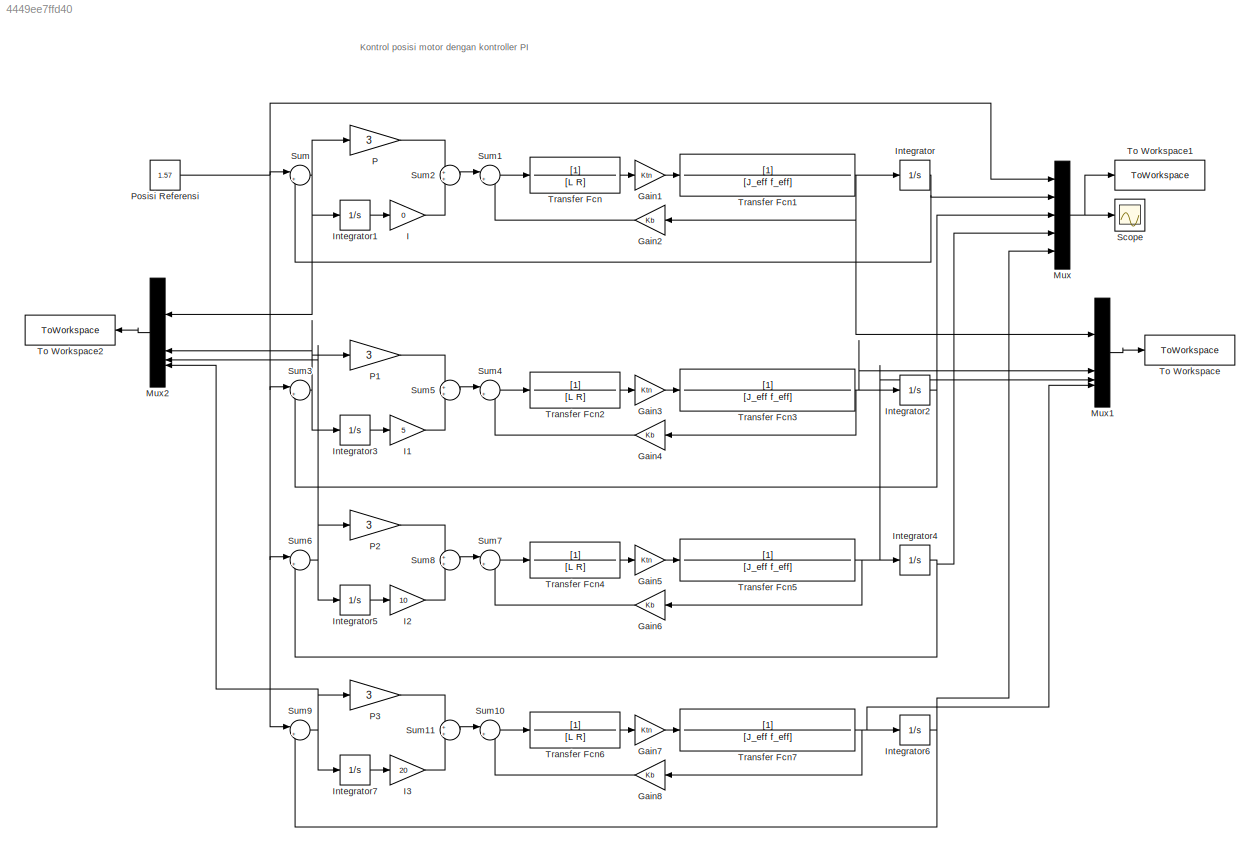
MODEL slx_4449ee7ffd40
KIND model
CONFIG AbsTol = auto
CONFIG EnableMultiTasking = off
CONFIG FixedStep = auto
CONFIG MaxStep = auto
CONFIG MinStep = auto
CONFIG RelTol = 1e-3
CONFIG SampleTimeConstraint = Unconstrained
CONFIG SolverName = VariableStepAuto
CONFIG StartTime = 0.0
CONFIG StopTime = 2.5
BLOCK [Gain] Gain1
  Gain = Ktn
BLOCK [Gain] Gain2
  Gain = Kb
BLOCK [Gain] Gain3
  Gain = Ktn
BLOCK [Gain] Gain4
  Gain = Kb
BLOCK [Gain] Gain5
  Gain = Ktn
BLOCK [Gain] Gain6
  Gain = Kb
BLOCK [Gain] Gain7
  Gain = Ktn
BLOCK [Gain] Gain8
  Gain = Kb
BLOCK [Gain] I
  Gain = 0
BLOCK [Gain] I1
  Gain = 5
BLOCK [Gain] I2
  Gain = 10
BLOCK [Gain] I3
  Gain = 20
BLOCK [Integrator] Integrator
BLOCK [Integrator] Integrator1
BLOCK [Integrator] Integrator2
BLOCK [Integrator] Integrator3
BLOCK [Integrator] Integrator4
BLOCK [Integrator] Integrator5
BLOCK [Integrator] Integrator6
BLOCK [Integrator] Integrator7
BLOCK [Mux] Mux
  DisplayOption = bar
  Inputs = 5
BLOCK [Mux] Mux1
  DisplayOption = bar
BLOCK [Mux] Mux2
  DisplayOption = bar
BLOCK [Gain] P
  Gain = 3
BLOCK [Gain] P1
  Gain = 3
BLOCK [Gain] P2
  Gain = 3
BLOCK [Gain] P3
  Gain = 3
BLOCK [Constant] Posisi Referensi
  Value = 1.57
BLOCK [Scope] Scope
  Floating = off
  NumInputPorts = 1
  ScopeSpecificationString = Simulink.scopes.TimeScopeBlockCfg('CurrentConfiguration', extmgr.ConfigurationSet(extmgr.Configuration('Core','General UI',true),extmgr.Configuration('Core','Source UI',true),extmgr.Configuration('Sources','WiredSimulink',true),extmgr.Configuration('Visuals','Time Domain',true,'SerializedDisplays',{struct('MinYLimReal','-0.36524','MaxYLimReal','3.2872','YLabelReal','','MinYLimMag','0.00000','MaxYL...<+1459ch>
BLOCK [Sum] Sum
  Inputs = |+-
BLOCK [Sum] Sum1
  Inputs = |+-
BLOCK [Sum] Sum10
  Inputs = |+-
BLOCK [Sum] Sum11
BLOCK [Sum] Sum2
BLOCK [Sum] Sum3
  Inputs = |+-
BLOCK [Sum] Sum4
  Inputs = |+-
BLOCK [Sum] Sum5
BLOCK [Sum] Sum6
  Inputs = |+-
BLOCK [Sum] Sum7
  Inputs = |+-
BLOCK [Sum] Sum8
BLOCK [Sum] Sum9
  Inputs = |+-
BLOCK [ToWorkspace] To Workspace
  FixptAsFi = on
  MaxDataPoints = inf
  SampleTime = -1
  SaveFormat = Timeseries
  VariableName = kec_act
BLOCK [ToWorkspace] To Workspace1
  FixptAsFi = on
  MaxDataPoints = inf
  SampleTime = -1
  SaveFormat = Timeseries
  VariableName = pos_act
BLOCK [ToWorkspace] To Workspace2
  FixptAsFi = on
  MaxDataPoints = inf
  SampleTime = -1
  SaveFormat = Timeseries
  VariableName = err
BLOCK [TransferFcn] Transfer Fcn
  Denominator = [L R]
BLOCK [TransferFcn] Transfer Fcn1
  Denominator = [J_eff f_eff]
BLOCK [TransferFcn] Transfer Fcn2
  Denominator = [L R]
BLOCK [TransferFcn] Transfer Fcn3
  Denominator = [J_eff f_eff]
BLOCK [TransferFcn] Transfer Fcn4
  Denominator = [L R]
BLOCK [TransferFcn] Transfer Fcn5
  Denominator = [J_eff f_eff]
BLOCK [TransferFcn] Transfer Fcn6
  Denominator = [L R]
BLOCK [TransferFcn] Transfer Fcn7
  Denominator = [J_eff f_eff]
ANNOTATION (root): Kontrol posisi motor dengan kontroller PI
LINE Gain1:1 -> Transfer Fcn1:1
LINE Gain2:1 -> Sum1:2
LINE Gain3:1 -> Transfer Fcn3:1
LINE Gain4:1 -> Sum4:2
LINE Gain5:1 -> Transfer Fcn5:1
LINE Gain6:1 -> Sum7:2
LINE Gain7:1 -> Transfer Fcn7:1
LINE Gain8:1 -> Sum10:2
LINE I1:1 -> Sum5:2
LINE I2:1 -> Sum8:2
LINE I3:1 -> Sum11:2
LINE I:1 -> Sum2:2
LINE Integrator1:1 -> I:1
NET Integrator2:1 -> Mux:3, Sum3:2
LINE Integrator3:1 -> I1:1
NET Integrator4:1 -> Mux:4, Sum6:2
LINE Integrator5:1 -> I2:1
NET Integrator6:1 -> Mux:5, Sum9:2
LINE Integrator7:1 -> I3:1
NET Integrator:1 -> Mux:2, Sum:2
LINE Mux1:1 -> To Workspace:1
LINE Mux2:1 -> To Workspace2:1
NET Mux:1 -> Scope:1, To Workspace1:1
LINE P1:1 -> Sum5:1
LINE P2:1 -> Sum8:1
LINE P3:1 -> Sum11:1
LINE P:1 -> Sum2:1
NET Posisi Referensi:1 -> Mux:1, Sum3:1, Sum6:1, Sum9:1, Sum:1
LINE Sum10:1 -> Transfer Fcn6:1
LINE Sum11:1 -> Sum10:1
LINE Sum1:1 -> Transfer Fcn:1
LINE Sum2:1 -> Sum1:1
NET Sum3:1 -> Integrator3:1, Mux2:2, P1:1
LINE Sum4:1 -> Transfer Fcn2:1
LINE Sum5:1 -> Sum4:1
NET Sum6:1 -> Integrator5:1, Mux2:3, P2:1
LINE Sum7:1 -> Transfer Fcn4:1
LINE Sum8:1 -> Sum7:1
NET Sum9:1 -> Integrator7:1, Mux2:4, P3:1
NET Sum:1 -> Integrator1:1, Mux2:1, P:1
NET Transfer Fcn1:1 -> Gain2:1, Integrator:1, Mux1:1
LINE Transfer Fcn2:1 -> Gain3:1
NET Transfer Fcn3:1 -> Gain4:1, Integrator2:1, Mux1:2
LINE Transfer Fcn4:1 -> Gain5:1
NET Transfer Fcn5:1 -> Gain6:1, Integrator4:1, Mux1:3
LINE Transfer Fcn6:1 -> Gain7:1
NET Transfer Fcn7:1 -> Gain8:1, Integrator6:1, Mux1:4
LINE Transfer Fcn:1 -> Gain1:1
note: NET lines group one-source signal fan-out (src -> all destinations, sorted); 1:1 wires keep LINE
